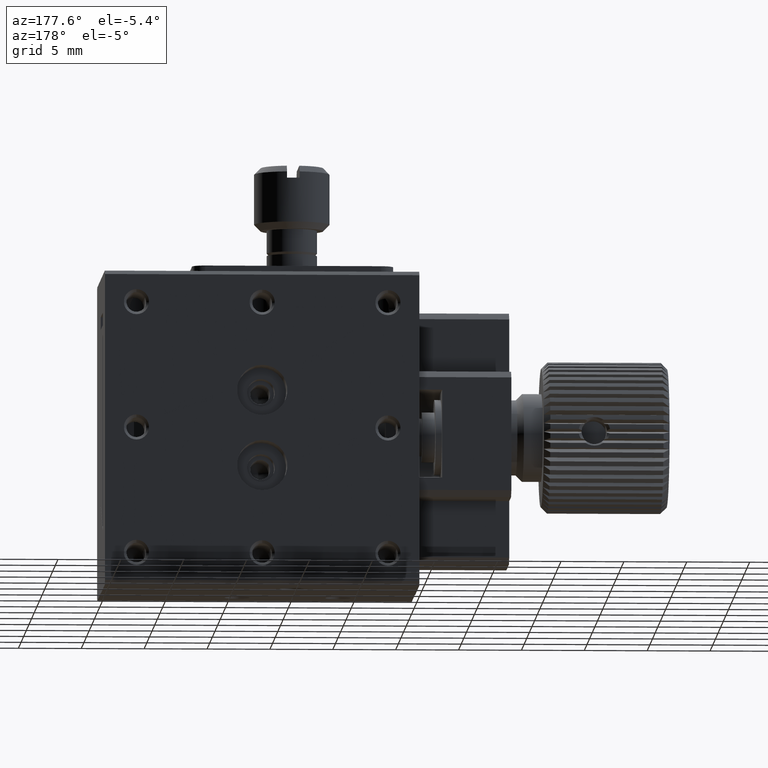
[diagram: clean part render]
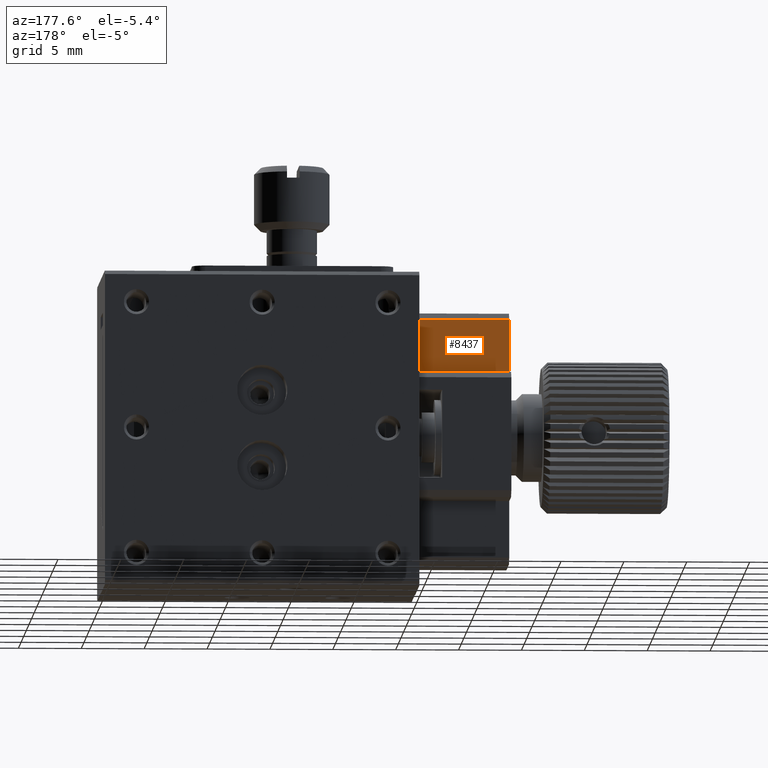
[diagram: same view with one face highlighted and labeled with its STEP entity id]
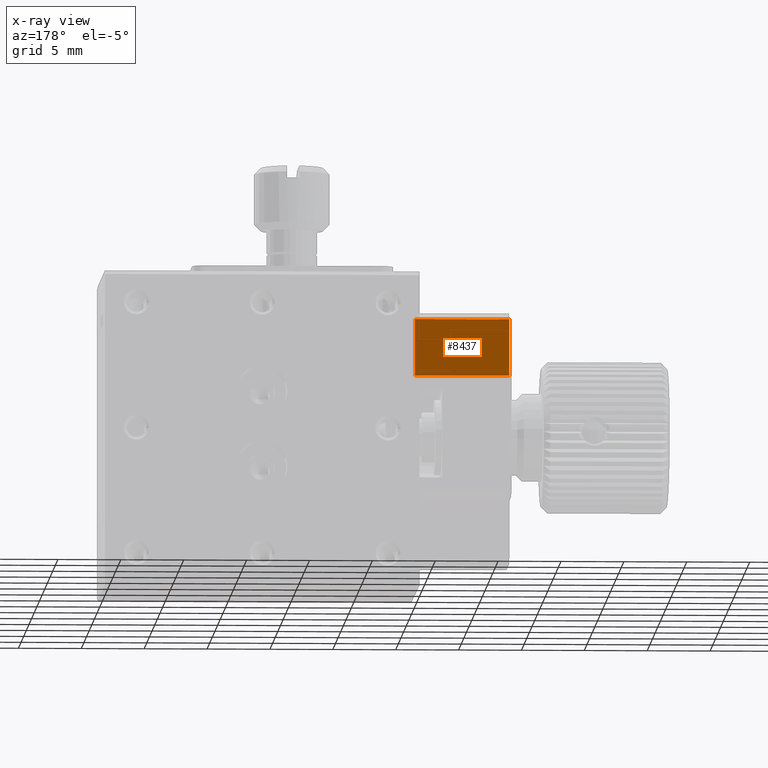
[diagram: x-ray of the same camera — body ghosted, the highlighted face saturated]
A machine part, auxiliary view. The second image highlights one B-rep face of the part: STEP entity #8437.
The next image is the same camera in x-ray: the body ghosted, the highlighted face saturated — about 5% of this face is hidden behind the body in this view.
In plain terms, the highlighted planar face has unit normal (0, 1, 0).
Its self-contained STEP definition (entity closure, byte-faithful):
#330 = VECTOR ( 'NONE', #8975, 1000.000000000000000 ) ;
#420 = CARTESIAN_POINT ( 'NONE',  ( -7.500000000000000000, 6.500000000000000888, -7.500000000000000000 ) ) ;
#445 = DIRECTION ( 'NONE',  ( 0.000000000000000000, 1.000000000000000000, 0.000000000000000000 ) ) ;
#1941 = ORIENTED_EDGE ( 'NONE', *, *, #5415, .T. ) ;
#2158 = ORIENTED_EDGE ( 'NONE', *, *, #2353, .T. ) ;
#2353 = EDGE_CURVE ( 'NONE', #3811, #5462, #8545, .T. ) ;
#2843 = CARTESIAN_POINT ( 'NONE',  ( 0.000000000000000000, 6.500000000000000888, 0.000000000000000000 ) ) ;
#3247 = ORIENTED_EDGE ( 'NONE', *, *, #12476, .F. ) ;
#3513 = EDGE_LOOP ( 'NONE', ( #2158, #4169, #1941, #3247 ) ) ;
#3811 = VERTEX_POINT ( 'NONE', #4001 ) ;
#3988 = AXIS2_PLACEMENT_3D ( 'NONE', #6485, #445, #8512 ) ;
#4001 = CARTESIAN_POINT ( 'NONE',  ( -7.500000000000000000, 6.500000000000000888, -7.500000000000000000 ) ) ;
#4169 = ORIENTED_EDGE ( 'NONE', *, *, #11631, .T. ) ;
#4491 = PLANE ( 'NONE',  #3988 ) ;
#4745 = CARTESIAN_POINT ( 'NONE',  ( -7.500000000000000000, 6.500000000000000888, -7.500000000000000000 ) ) ;
#5168 = VERTEX_POINT ( 'NONE', #11203 ) ;
#5415 = EDGE_CURVE ( 'NONE', #5168, #8980, #10837, .T. ) ;
#5462 = VERTEX_POINT ( 'NONE', #10040 ) ;
#6403 = VECTOR ( 'NONE', #8353, 1000.000000000000000 ) ;
#6485 = CARTESIAN_POINT ( 'NONE',  ( -7.500000000000000000, 6.500000000000000888, -7.500000000000000000 ) ) ;
#7714 = LINE ( 'NONE', #4745, #9053 ) ;
#7840 = CARTESIAN_POINT ( 'NONE',  ( 0.000000000000000000, 6.500000000000000888, -7.500000000000000000 ) ) ;
#8353 = DIRECTION ( 'NONE',  ( 0.000000000000000000, -0.000000000000000000, 1.000000000000000000 ) ) ;
#8437 = ADVANCED_FACE ( 'NONE', ( #9362 ), #4491, .T. ) ;
#8512 = DIRECTION ( 'NONE',  ( 0.000000000000000000, -0.000000000000000000, 1.000000000000000000 ) ) ;
#8545 = LINE ( 'NONE', #420, #6403 ) ;
#8827 = VECTOR ( 'NONE', #9736, 1000.000000000000000 ) ;
#8975 = DIRECTION ( 'NONE',  ( 0.000000000000000000, 0.000000000000000000, -1.000000000000000000 ) ) ;
#8980 = VERTEX_POINT ( 'NONE', #7840 ) ;
#9053 = VECTOR ( 'NONE', #10870, 1000.000000000000000 ) ;
#9362 = FACE_OUTER_BOUND ( 'NONE', #3513, .T. ) ;
#9736 = DIRECTION ( 'NONE',  ( 1.000000000000000000, 0.000000000000000000, -0.000000000000000000 ) ) ;
#10040 = CARTESIAN_POINT ( 'NONE',  ( -7.500000000000000000, 6.500000000000000888, -3.000000000000000000 ) ) ;
#10837 = LINE ( 'NONE', #2843, #330 ) ;
#10870 = DIRECTION ( 'NONE',  ( 1.000000000000000000, 0.000000000000000000, -0.000000000000000000 ) ) ;
#11203 = CARTESIAN_POINT ( 'NONE',  ( 0.000000000000000000, 6.500000000000000888, -3.000000000000000000 ) ) ;
#11631 = EDGE_CURVE ( 'NONE', #5462, #5168, #11735, .T. ) ;
#11735 = LINE ( 'NONE', #12722, #8827 ) ;
#12476 = EDGE_CURVE ( 'NONE', #3811, #8980, #7714, .T. ) ;
#12722 = CARTESIAN_POINT ( 'NONE',  ( -7.500000000000000000, 6.500000000000000888, -3.000000000000000000 ) ) ;